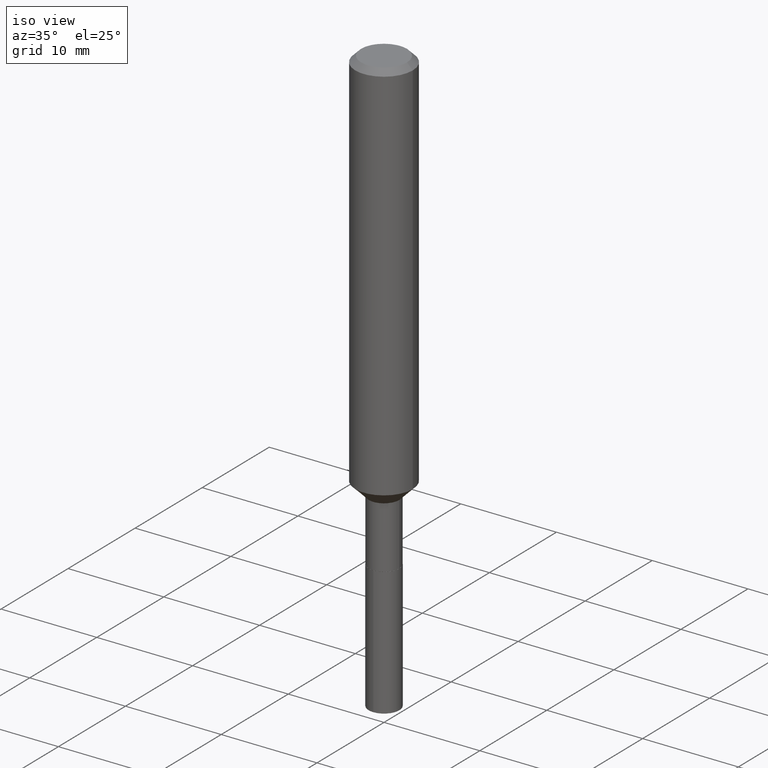
[diagram: clean part render]
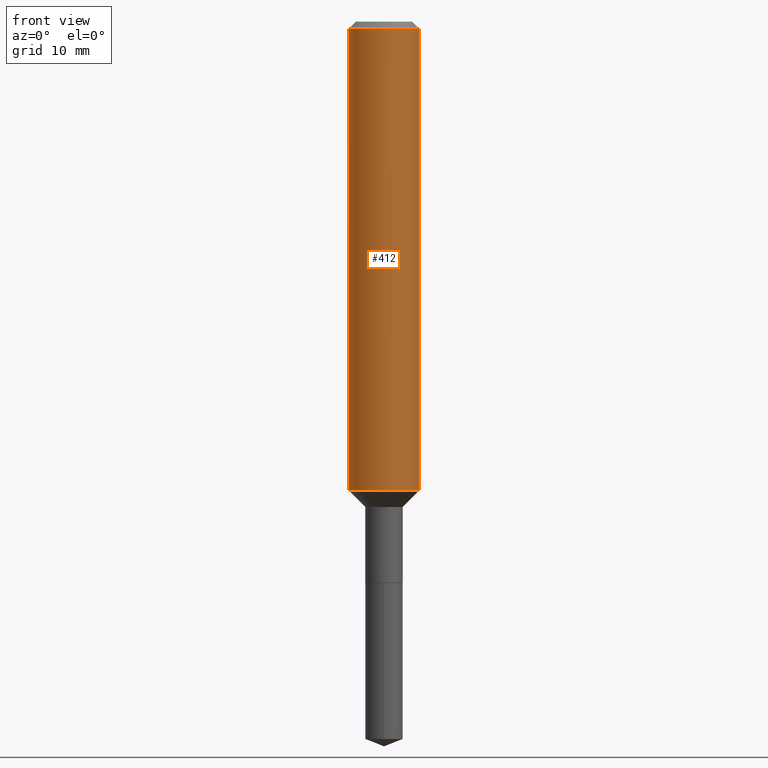
[diagram: tour spotlight — one face highlighted and labeled with its STEP entity id]
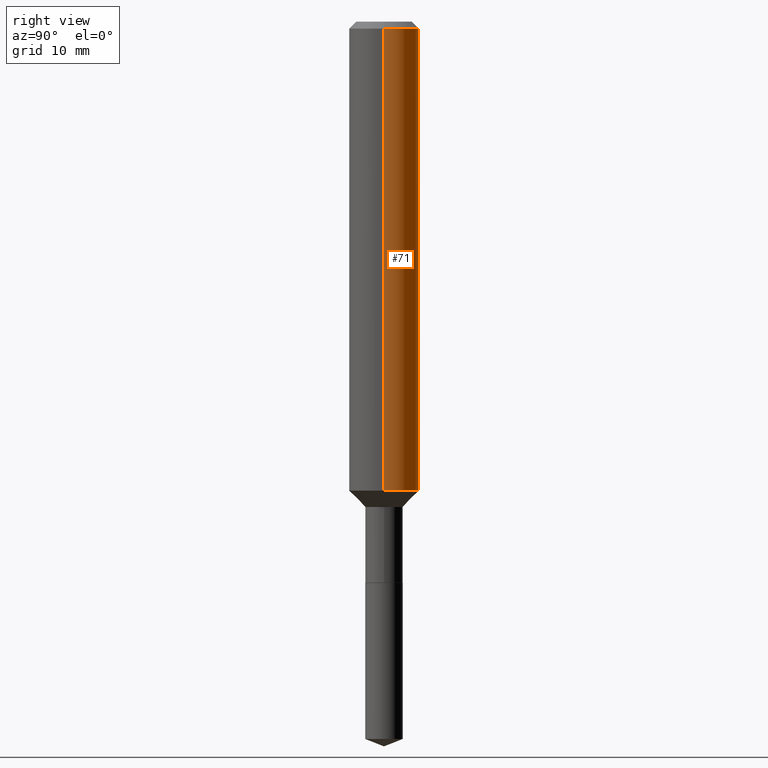
[diagram: tour spotlight — one face highlighted and labeled with its STEP entity id]
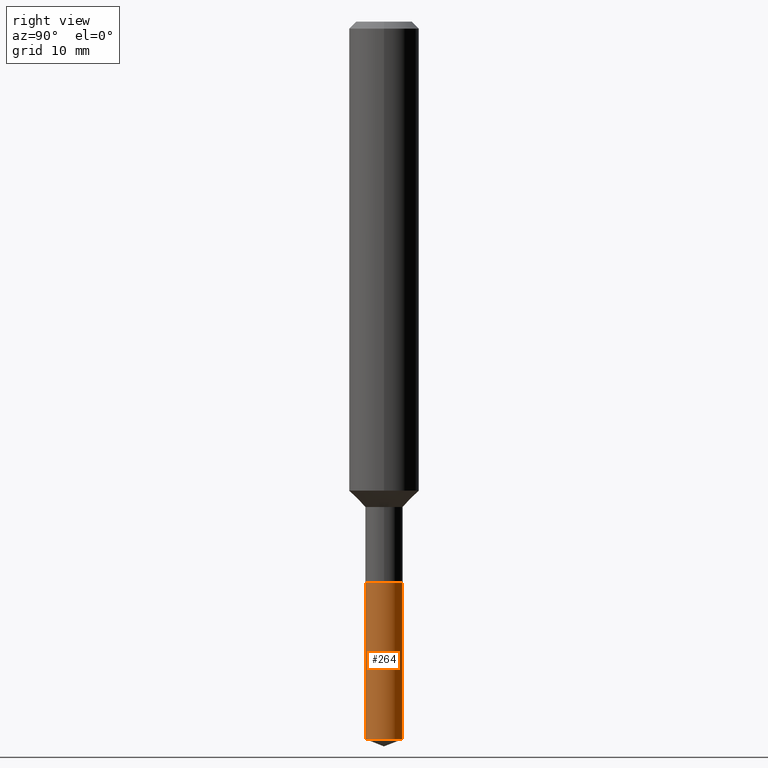
[diagram: tour spotlight — one face highlighted and labeled with its STEP entity id]
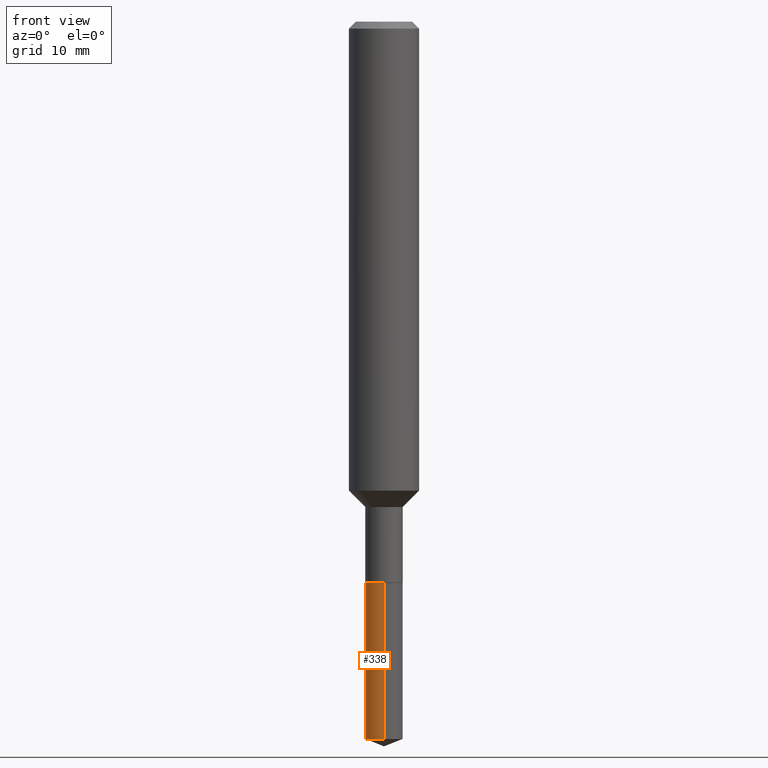
[diagram: tour spotlight — one face highlighted and labeled with its STEP entity id]
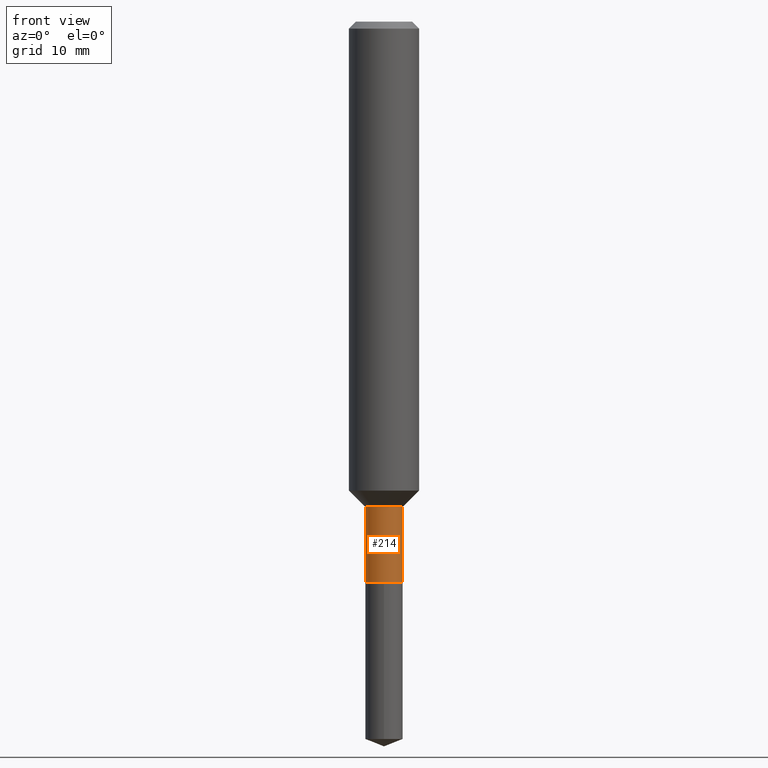
[diagram: tour spotlight — one face highlighted and labeled with its STEP entity id]
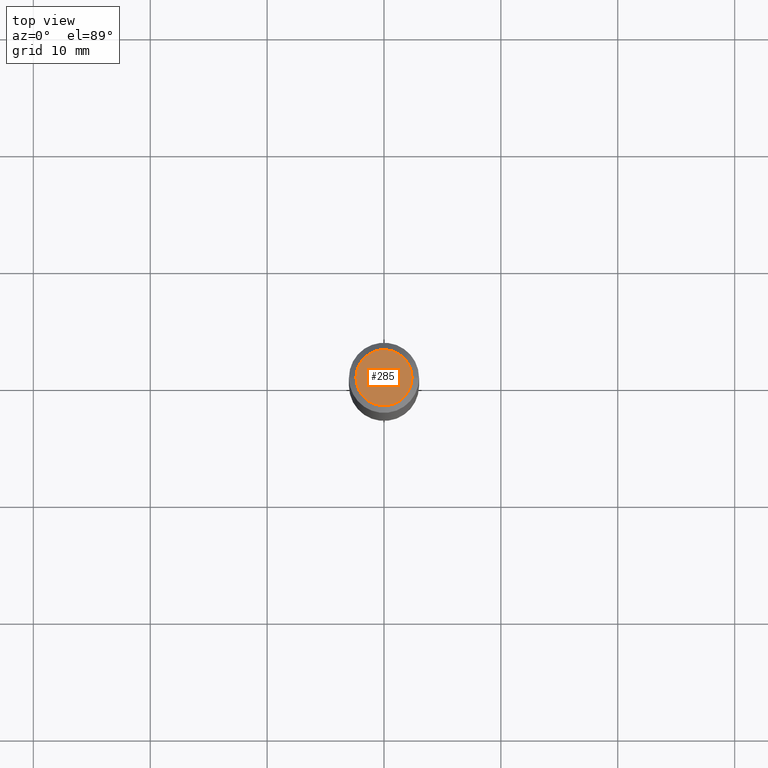
[diagram: tour spotlight — one face highlighted and labeled with its STEP entity id]
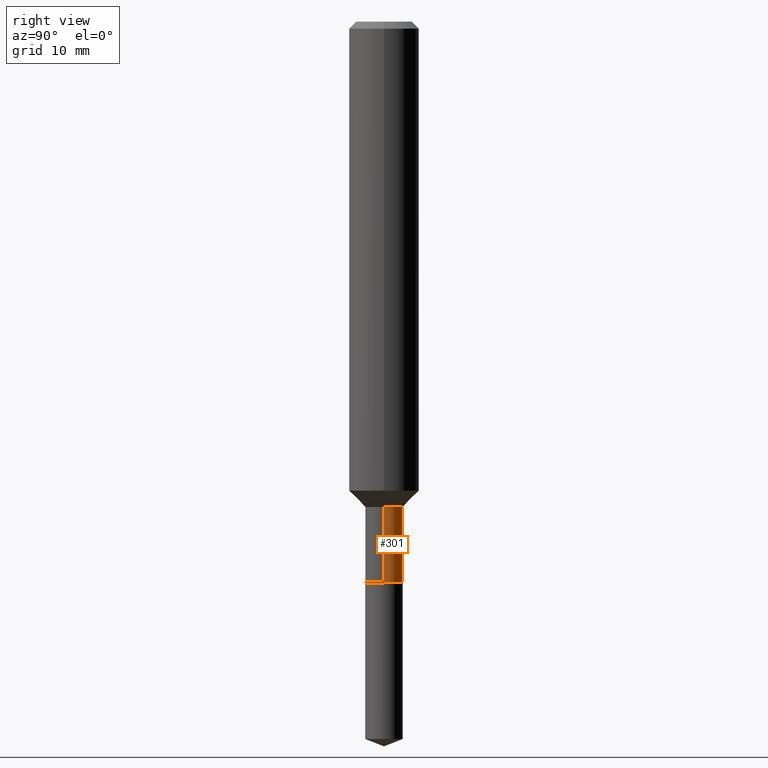
[diagram: tour spotlight — one face highlighted and labeled with its STEP entity id]
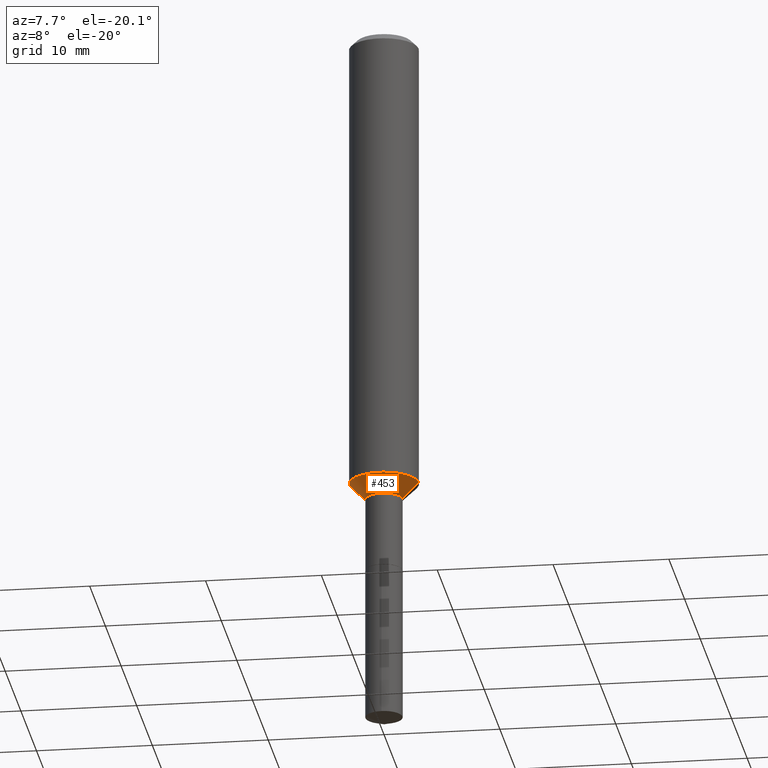
[diagram: tour spotlight — one face highlighted and labeled with its STEP entity id]
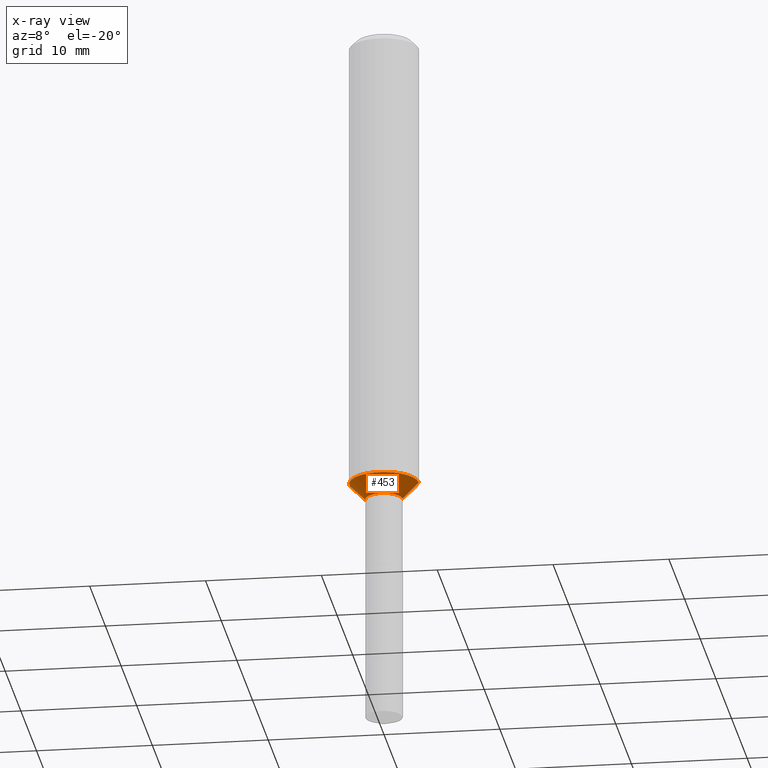
[diagram: x-ray of the same camera — body ghosted, this tour face saturated]
A machine part: a face-by-face anatomy tour. The part has 17 B-rep faces; the first image is the clean iso view, then the 8 largest visible faces are spotlighted one at a time (largest first), each with its STEP entity span.

Face 1 — front view, entity #412. In plain terms, the highlighted cylindrical surface (edge-blend (fillet) strip) has radius 2.9997 mm, axis along (-0, 0, 1).
Definition (entity closure, byte-faithful):
#31 = DIRECTION ( 'NONE',  ( -2.445468806185136597E-29, 3.491481338843145583E-15, 1.000000000000000000 ) ) ;
#32 = LINE ( 'NONE', #172, #233 ) ;
#40 = VERTEX_POINT ( 'NONE', #406 ) ;
#47 = VERTEX_POINT ( 'NONE', #262 ) ;
#66 = AXIS2_PLACEMENT_3D ( 'NONE', #263, #479, #106 ) ;
#81 = ORIENTED_EDGE ( 'NONE', *, *, #430, .F. ) ;
#90 = EDGE_CURVE ( 'NONE', #438, #40, #329, .T. ) ;
#103 = CARTESIAN_POINT ( 'NONE',  ( 3.862617979369423335E-29, -5.514794774702748288E-15, -1.579499999999999904 ) ) ;
#106 = DIRECTION ( 'NONE',  ( 1.000000000000000000, -6.982962677686266711E-15, 0.000000000000000000 ) ) ;
#138 = DIRECTION ( 'NONE',  ( -2.445468806185136597E-29, 3.491481338843145583E-15, 1.000000000000000000 ) ) ;
#143 = DIRECTION ( 'NONE',  ( -2.445468806185136877E-29, 3.491481338843145188E-15, 1.000000000000000000 ) ) ;
#144 = AXIS2_PLACEMENT_3D ( 'NONE', #224, #31, #174 ) ;
#153 = VECTOR ( 'NONE', #143, 39.37007874015748143 ) ;
#164 = FACE_OUTER_BOUND ( 'NONE', #232, .T. ) ;
#165 = EDGE_CURVE ( 'NONE', #294, #47, #32, .T. ) ;
#172 = CARTESIAN_POINT ( 'NONE',  ( 0.1181000000000001077, -8.246878922347488542E-16, 5.758764772215005345E-30 ) ) ;
#174 = DIRECTION ( 'NONE',  ( 1.000000000000000000, -6.982962677686266711E-15, 4.876176775795935793E-29 ) ) ;
#177 = CYLINDRICAL_SURFACE ( 'NONE', #144, 0.1181000000000001077 ) ;
#212 = CARTESIAN_POINT ( 'NONE',  ( 0.1181000000000001632, -6.339482666937496551E-15, -1.579499999999999904 ) ) ;
#224 = CARTESIAN_POINT ( 'NONE',  ( 0.000000000000000000, 0.000000000000000000, 0.000000000000000000 ) ) ;
#232 = EDGE_LOOP ( 'NONE', ( #298, #457, #411, #81 ) ) ;
#233 = VECTOR ( 'NONE', #439, 39.37007874015748143 ) ;
#261 = AXIS2_PLACEMENT_3D ( 'NONE', #103, #138, #286 ) ;
#262 = CARTESIAN_POINT ( 'NONE',  ( 0.1180999999999999966, -9.071566814582237199E-16, -0.02362000000000014088 ) ) ;
#263 = CARTESIAN_POINT ( 'NONE',  ( 5.776197320209327532E-31, -8.246878922347559293E-17, -0.02362000000000014088 ) ) ;
#286 = DIRECTION ( 'NONE',  ( 1.000000000000000000, -6.982962677686269077E-15, 0.000000000000000000 ) ) ;
#294 = VERTEX_POINT ( 'NONE', #212 ) ;
#298 = ORIENTED_EDGE ( 'NONE', *, *, #90, .F. ) ;
#329 = LINE ( 'NONE', #360, #153 ) ;
#360 = CARTESIAN_POINT ( 'NONE',  ( -0.1181000000000001077, 8.391509709326790846E-16, -5.809262341591049389E-30 ) ) ;
#406 = CARTESIAN_POINT ( 'NONE',  ( -0.1180999999999999966, -1.959480811030432098E-15, -0.02362000000000014088 ) ) ;
#409 = CIRCLE ( 'NONE', #66, 0.1180999999999999966 ) ;
#411 = ORIENTED_EDGE ( 'NONE', *, *, #165, .T. ) ;
#412 = ADVANCED_FACE ( 'NONE', ( #164 ), #177, .T. ) ;
#430 = EDGE_CURVE ( 'NONE', #40, #47, #409, .T. ) ;
#438 = VERTEX_POINT ( 'NONE', #482 ) ;
#439 = DIRECTION ( 'NONE',  ( -2.445468806185136877E-29, 3.491481338843145188E-15, 1.000000000000000000 ) ) ;
#457 = ORIENTED_EDGE ( 'NONE', *, *, #486, .T. ) ;
#479 = DIRECTION ( 'NONE',  ( -2.445468806185136597E-29, 3.491481338843145583E-15, 1.000000000000000000 ) ) ;
#482 = CARTESIAN_POINT ( 'NONE',  ( -0.1181000000000001632, -4.675643803770067725E-15, -1.579499999999999904 ) ) ;
#485 = CIRCLE ( 'NONE', #261, 0.1181000000000001909 ) ;
#486 = EDGE_CURVE ( 'NONE', #438, #294, #485, .T. ) ;

Face 2 — right view, entity #71. In plain terms, the highlighted cylindrical surface (edge-blend (fillet) strip) has radius 2.9997 mm, axis along (-0, 0, 1).
Definition (entity closure, byte-faithful):
#4 = AXIS2_PLACEMENT_3D ( 'NONE', #254, #480, #265 ) ;
#6 = ORIENTED_EDGE ( 'NONE', *, *, #255, .T. ) ;
#32 = LINE ( 'NONE', #172, #233 ) ;
#40 = VERTEX_POINT ( 'NONE', #406 ) ;
#47 = VERTEX_POINT ( 'NONE', #262 ) ;
#58 = ORIENTED_EDGE ( 'NONE', *, *, #203, .F. ) ;
#60 = DIRECTION ( 'NONE',  ( 1.000000000000000000, -6.982962677686266711E-15, 0.000000000000000000 ) ) ;
#71 = ADVANCED_FACE ( 'NONE', ( #221 ), #140, .T. ) ;
#90 = EDGE_CURVE ( 'NONE', #438, #40, #329, .T. ) ;
#95 = CARTESIAN_POINT ( 'NONE',  ( 5.776197320209327532E-31, -8.246878922347559293E-17, -0.02362000000000014088 ) ) ;
#135 = AXIS2_PLACEMENT_3D ( 'NONE', #410, #230, #378 ) ;
#140 = CYLINDRICAL_SURFACE ( 'NONE', #4, 0.1181000000000001077 ) ;
#143 = DIRECTION ( 'NONE',  ( -2.445468806185136877E-29, 3.491481338843145188E-15, 1.000000000000000000 ) ) ;
#153 = VECTOR ( 'NONE', #143, 39.37007874015748143 ) ;
#157 = EDGE_LOOP ( 'NONE', ( #6, #418, #58, #246 ) ) ;
#165 = EDGE_CURVE ( 'NONE', #294, #47, #32, .T. ) ;
#172 = CARTESIAN_POINT ( 'NONE',  ( 0.1181000000000001077, -8.246878922347488542E-16, 5.758764772215005345E-30 ) ) ;
#203 = EDGE_CURVE ( 'NONE', #47, #40, #484, .T. ) ;
#212 = CARTESIAN_POINT ( 'NONE',  ( 0.1181000000000001632, -6.339482666937496551E-15, -1.579499999999999904 ) ) ;
#221 = FACE_OUTER_BOUND ( 'NONE', #157, .T. ) ;
#230 = DIRECTION ( 'NONE',  ( -2.445468806185136597E-29, 3.491481338843145583E-15, 1.000000000000000000 ) ) ;
#233 = VECTOR ( 'NONE', #439, 39.37007874015748143 ) ;
#246 = ORIENTED_EDGE ( 'NONE', *, *, #165, .F. ) ;
#251 = DIRECTION ( 'NONE',  ( -2.445468806185136597E-29, 3.491481338843145583E-15, 1.000000000000000000 ) ) ;
#254 = CARTESIAN_POINT ( 'NONE',  ( 0.000000000000000000, 0.000000000000000000, 0.000000000000000000 ) ) ;
#255 = EDGE_CURVE ( 'NONE', #294, #438, #470, .T. ) ;
#262 = CARTESIAN_POINT ( 'NONE',  ( 0.1180999999999999966, -9.071566814582237199E-16, -0.02362000000000014088 ) ) ;
#265 = DIRECTION ( 'NONE',  ( 1.000000000000000000, -6.982962677686266711E-15, 4.876176775795935793E-29 ) ) ;
#294 = VERTEX_POINT ( 'NONE', #212 ) ;
#329 = LINE ( 'NONE', #360, #153 ) ;
#360 = CARTESIAN_POINT ( 'NONE',  ( -0.1181000000000001077, 8.391509709326790846E-16, -5.809262341591049389E-30 ) ) ;
#378 = DIRECTION ( 'NONE',  ( 1.000000000000000000, -6.982962677686269077E-15, 0.000000000000000000 ) ) ;
#402 = AXIS2_PLACEMENT_3D ( 'NONE', #95, #251, #60 ) ;
#406 = CARTESIAN_POINT ( 'NONE',  ( -0.1180999999999999966, -1.959480811030432098E-15, -0.02362000000000014088 ) ) ;
#410 = CARTESIAN_POINT ( 'NONE',  ( 3.862617979369423335E-29, -5.514794774702748288E-15, -1.579499999999999904 ) ) ;
#418 = ORIENTED_EDGE ( 'NONE', *, *, #90, .T. ) ;
#438 = VERTEX_POINT ( 'NONE', #482 ) ;
#439 = DIRECTION ( 'NONE',  ( -2.445468806185136877E-29, 3.491481338843145188E-15, 1.000000000000000000 ) ) ;
#470 = CIRCLE ( 'NONE', #135, 0.1181000000000001909 ) ;
#480 = DIRECTION ( 'NONE',  ( -2.445468806185136597E-29, 3.491481338843145583E-15, 1.000000000000000000 ) ) ;
#482 = CARTESIAN_POINT ( 'NONE',  ( -0.1181000000000001632, -4.675643803770067725E-15, -1.579499999999999904 ) ) ;
#484 = CIRCLE ( 'NONE', #402, 0.1180999999999999966 ) ;

Face 3 — right view, entity #264. In plain terms, the highlighted cylindrical surface (edge-blend (fillet) strip) has radius 1.6002 mm, axis along (-0, 0, 1).
Definition (entity closure, byte-faithful):
#11 = CARTESIAN_POINT ( 'NONE',  ( 4.476419235289221862E-16, 0.06299999999999340849, -1.889700000000000379 ) ) ;
#13 = EDGE_CURVE ( 'NONE', #209, #277, #267, .T. ) ;
#28 = LINE ( 'NONE', #399, #376 ) ;
#44 = DIRECTION ( 'NONE',  ( -6.982962677686265922E-15, -1.000000000000000000, 4.336266656609941617E-15 ) ) ;
#49 = AXIS2_PLACEMENT_3D ( 'NONE', #222, #191, #96 ) ;
#78 = CYLINDRICAL_SURFACE ( 'NONE', #258, 0.06300000000000000044 ) ;
#96 = DIRECTION ( 'NONE',  ( -6.982962677686265922E-15, -1.000000000000000000, 4.336266656609941617E-15 ) ) ;
#97 = ORIENTED_EDGE ( 'NONE', *, *, #112, .F. ) ;
#112 = EDGE_CURVE ( 'NONE', #269, #209, #28, .T. ) ;
#119 = DIRECTION ( 'NONE',  ( -2.434988852863249163E-29, 3.506489228481988303E-15, 1.000000000000000000 ) ) ;
#127 = ORIENTED_EDGE ( 'NONE', *, *, #444, .T. ) ;
#139 = CARTESIAN_POINT ( 'NONE',  ( 4.476419235289220876E-16, 0.06299999999999156275, -2.416083640036259084 ) ) ;
#180 = CARTESIAN_POINT ( 'NONE',  ( 5.902940698865924869E-29, -8.443610849848174055E-15, -2.416083640036259084 ) ) ;
#186 = DIRECTION ( 'NONE',  ( -2.434988852863248882E-29, 3.506489228481988303E-15, 1.000000000000000000 ) ) ;
#188 = EDGE_CURVE ( 'NONE', #423, #277, #227, .T. ) ;
#191 = DIRECTION ( 'NONE',  ( -2.434988852863249163E-29, 3.506489228481988303E-15, 1.000000000000000000 ) ) ;
#198 = ORIENTED_EDGE ( 'NONE', *, *, #188, .T. ) ;
#209 = VERTEX_POINT ( 'NONE', #284 ) ;
#211 = CIRCLE ( 'NONE', #241, 0.06300000000000001432 ) ;
#222 = CARTESIAN_POINT ( 'NONE',  ( 4.621202403048053204E-29, -6.597852286011892490E-15, -1.889700000000000157 ) ) ;
#227 = LINE ( 'NONE', #317, #408 ) ;
#241 = AXIS2_PLACEMENT_3D ( 'NONE', #180, #320, #405 ) ;
#258 = AXIS2_PLACEMENT_3D ( 'NONE', #303, #119, #44 ) ;
#264 = ADVANCED_FACE ( 'NONE', ( #373 ), #78, .T. ) ;
#267 = CIRCLE ( 'NONE', #49, 0.06300000000000000044 ) ;
#269 = VERTEX_POINT ( 'NONE', #467 ) ;
#277 = VERTEX_POINT ( 'NONE', #11 ) ;
#284 = CARTESIAN_POINT ( 'NONE',  ( -4.399266486941885775E-16, -0.06300000000000660627, -1.889699999999999713 ) ) ;
#293 = DIRECTION ( 'NONE',  ( -2.434988852863248882E-29, 3.506489228481988303E-15, 1.000000000000000000 ) ) ;
#303 = CARTESIAN_POINT ( 'NONE',  ( 4.621202403048053204E-29, -6.597852286011892490E-15, -1.889700000000000157 ) ) ;
#317 = CARTESIAN_POINT ( 'NONE',  ( 4.476419235289092686E-16, 0.06299999999999340849, -1.889700000000000379 ) ) ;
#320 = DIRECTION ( 'NONE',  ( -2.434988852863249163E-29, 3.506489228481988303E-15, 1.000000000000000000 ) ) ;
#336 = EDGE_LOOP ( 'NONE', ( #127, #198, #427, #97 ) ) ;
#373 = FACE_OUTER_BOUND ( 'NONE', #336, .T. ) ;
#376 = VECTOR ( 'NONE', #186, 39.37007874015748143 ) ;
#399 = CARTESIAN_POINT ( 'NONE',  ( -4.399266486941885775E-16, -0.06300000000000660627, -1.889699999999999713 ) ) ;
#405 = DIRECTION ( 'NONE',  ( -6.982962677686265133E-15, -1.000000000000000000, 4.336266656609940828E-15 ) ) ;
#408 = VECTOR ( 'NONE', #293, 39.37007874015748143 ) ;
#423 = VERTEX_POINT ( 'NONE', #139 ) ;
#427 = ORIENTED_EDGE ( 'NONE', *, *, #13, .F. ) ;
#444 = EDGE_CURVE ( 'NONE', #269, #423, #211, .T. ) ;
#467 = CARTESIAN_POINT ( 'NONE',  ( -4.399266486941757092E-16, -0.06300000000000843814, -2.416083640036258640 ) ) ;

Face 4 — front view, entity #338. In plain terms, the highlighted cylindrical surface (edge-blend (fillet) strip) has radius 1.6002 mm, axis along (-0, 0, 1).
Definition (entity closure, byte-faithful):
#11 = CARTESIAN_POINT ( 'NONE',  ( 4.476419235289221862E-16, 0.06299999999999340849, -1.889700000000000379 ) ) ;
#15 = DIRECTION ( 'NONE',  ( -6.982962677686265922E-15, -1.000000000000000000, 4.336266656609941617E-15 ) ) ;
#19 = EDGE_LOOP ( 'NONE', ( #67, #155, #79, #371 ) ) ;
#28 = LINE ( 'NONE', #399, #376 ) ;
#59 = DIRECTION ( 'NONE',  ( -2.434988852863249163E-29, 3.506489228481988303E-15, 1.000000000000000000 ) ) ;
#67 = ORIENTED_EDGE ( 'NONE', *, *, #188, .F. ) ;
#79 = ORIENTED_EDGE ( 'NONE', *, *, #112, .T. ) ;
#80 = AXIS2_PLACEMENT_3D ( 'NONE', #245, #59, #91 ) ;
#91 = DIRECTION ( 'NONE',  ( -6.982962677686265922E-15, -1.000000000000000000, 4.336266656609941617E-15 ) ) ;
#112 = EDGE_CURVE ( 'NONE', #269, #209, #28, .T. ) ;
#139 = CARTESIAN_POINT ( 'NONE',  ( 4.476419235289220876E-16, 0.06299999999999156275, -2.416083640036259084 ) ) ;
#155 = ORIENTED_EDGE ( 'NONE', *, *, #331, .T. ) ;
#163 = CYLINDRICAL_SURFACE ( 'NONE', #356, 0.06300000000000000044 ) ;
#186 = DIRECTION ( 'NONE',  ( -2.434988852863248882E-29, 3.506489228481988303E-15, 1.000000000000000000 ) ) ;
#188 = EDGE_CURVE ( 'NONE', #423, #277, #227, .T. ) ;
#200 = CARTESIAN_POINT ( 'NONE',  ( 5.902940698865924869E-29, -8.443610849848174055E-15, -2.416083640036259084 ) ) ;
#201 = AXIS2_PLACEMENT_3D ( 'NONE', #200, #385, #346 ) ;
#209 = VERTEX_POINT ( 'NONE', #284 ) ;
#227 = LINE ( 'NONE', #317, #408 ) ;
#245 = CARTESIAN_POINT ( 'NONE',  ( 4.621202403048053204E-29, -6.597852286011892490E-15, -1.889700000000000157 ) ) ;
#247 = CARTESIAN_POINT ( 'NONE',  ( 4.621202403048053204E-29, -6.597852286011892490E-15, -1.889700000000000157 ) ) ;
#269 = VERTEX_POINT ( 'NONE', #467 ) ;
#277 = VERTEX_POINT ( 'NONE', #11 ) ;
#279 = EDGE_CURVE ( 'NONE', #277, #209, #365, .T. ) ;
#284 = CARTESIAN_POINT ( 'NONE',  ( -4.399266486941885775E-16, -0.06300000000000660627, -1.889699999999999713 ) ) ;
#293 = DIRECTION ( 'NONE',  ( -2.434988852863248882E-29, 3.506489228481988303E-15, 1.000000000000000000 ) ) ;
#305 = DIRECTION ( 'NONE',  ( -2.434988852863249163E-29, 3.506489228481988303E-15, 1.000000000000000000 ) ) ;
#317 = CARTESIAN_POINT ( 'NONE',  ( 4.476419235289092686E-16, 0.06299999999999340849, -1.889700000000000379 ) ) ;
#331 = EDGE_CURVE ( 'NONE', #423, #269, #341, .T. ) ;
#338 = ADVANCED_FACE ( 'NONE', ( #471 ), #163, .T. ) ;
#341 = CIRCLE ( 'NONE', #201, 0.06300000000000001432 ) ;
#346 = DIRECTION ( 'NONE',  ( -6.982962677686265133E-15, -1.000000000000000000, 4.336266656609940828E-15 ) ) ;
#356 = AXIS2_PLACEMENT_3D ( 'NONE', #247, #305, #15 ) ;
#365 = CIRCLE ( 'NONE', #80, 0.06300000000000000044 ) ;
#371 = ORIENTED_EDGE ( 'NONE', *, *, #279, .F. ) ;
#376 = VECTOR ( 'NONE', #186, 39.37007874015748143 ) ;
#385 = DIRECTION ( 'NONE',  ( -2.434988852863249163E-29, 3.506489228481988303E-15, 1.000000000000000000 ) ) ;
#399 = CARTESIAN_POINT ( 'NONE',  ( -4.399266486941885775E-16, -0.06300000000000660627, -1.889699999999999713 ) ) ;
#408 = VECTOR ( 'NONE', #293, 39.37007874015748143 ) ;
#423 = VERTEX_POINT ( 'NONE', #139 ) ;
#467 = CARTESIAN_POINT ( 'NONE',  ( -4.399266486941757092E-16, -0.06300000000000843814, -2.416083640036258640 ) ) ;
#471 = FACE_OUTER_BOUND ( 'NONE', #19, .T. ) ;

Face 5 — front view, entity #214. In plain terms, the highlighted cylindrical surface (edge-blend (fillet) strip) has radius 1.6002 mm, axis along (-0, 0, 1).
Definition (entity closure, byte-faithful):
#35 = AXIS2_PLACEMENT_3D ( 'NONE', #451, #300, #380 ) ;
#41 = ORIENTED_EDGE ( 'NONE', *, *, #362, .F. ) ;
#51 = VECTOR ( 'NONE', #204, 39.37007874015748143 ) ;
#75 = VERTEX_POINT ( 'NONE', #226 ) ;
#84 = ORIENTED_EDGE ( 'NONE', *, *, #481, .T. ) ;
#102 = EDGE_LOOP ( 'NONE', ( #41, #213, #84, #113 ) ) ;
#113 = ORIENTED_EDGE ( 'NONE', *, *, #121, .F. ) ;
#121 = EDGE_CURVE ( 'NONE', #374, #466, #442, .T. ) ;
#129 = CIRCLE ( 'NONE', #307, 0.06299999999999998657 ) ;
#134 = VERTEX_POINT ( 'NONE', #287 ) ;
#141 = DIRECTION ( 'NONE',  ( -2.445468806185136877E-29, 3.491481338843145188E-15, 1.000000000000000000 ) ) ;
#158 = EDGE_CURVE ( 'NONE', #75, #134, #129, .T. ) ;
#190 = CYLINDRICAL_SURFACE ( 'NONE', #35, 0.06299999999999998657 ) ;
#204 = DIRECTION ( 'NONE',  ( -2.445468806185136877E-29, 3.491481338843145188E-15, 1.000000000000000000 ) ) ;
#213 = ORIENTED_EDGE ( 'NONE', *, *, #158, .T. ) ;
#214 = ADVANCED_FACE ( 'NONE', ( #268 ), #190, .T. ) ;
#215 = LINE ( 'NONE', #253, #249 ) ;
#226 = CARTESIAN_POINT ( 'NONE',  ( -0.06300000000000000044, -5.703999047378875308E-15, -1.889200000000000212 ) ) ;
#249 = VECTOR ( 'NONE', #141, 39.37007874015748143 ) ;
#253 = CARTESIAN_POINT ( 'NONE',  ( 0.06299999999999998657, -4.399266486942346765E-16, 3.071991368751438723E-30 ) ) ;
#268 = FACE_OUTER_BOUND ( 'NONE', #102, .T. ) ;
#287 = CARTESIAN_POINT ( 'NONE',  ( 0.06299999999999998657, -7.036033194036706451E-15, -1.889200000000000212 ) ) ;
#300 = DIRECTION ( 'NONE',  ( -2.445468806185136597E-29, 3.491481338843145583E-15, 1.000000000000000000 ) ) ;
#307 = AXIS2_PLACEMENT_3D ( 'NONE', #364, #361, #477 ) ;
#319 = AXIS2_PLACEMENT_3D ( 'NONE', #321, #396, #435 ) ;
#321 = CARTESIAN_POINT ( 'NONE',  ( 3.997363310590224498E-29, -5.707175396473005870E-15, -1.634600000000000053 ) ) ;
#340 = CARTESIAN_POINT ( 'NONE',  ( -0.06299999999999997269, -5.703999047378875308E-15, -1.634600000000000053 ) ) ;
#361 = DIRECTION ( 'NONE',  ( -2.445468806185136597E-29, 3.491481338843145583E-15, 1.000000000000000000 ) ) ;
#362 = EDGE_CURVE ( 'NONE', #75, #374, #429, .T. ) ;
#364 = CARTESIAN_POINT ( 'NONE',  ( 4.619979668644960403E-29, -6.596106545342470986E-15, -1.889200000000000212 ) ) ;
#374 = VERTEX_POINT ( 'NONE', #340 ) ;
#380 = DIRECTION ( 'NONE',  ( 1.000000000000000000, -6.982962677686265922E-15, 4.876176775795935793E-29 ) ) ;
#396 = DIRECTION ( 'NONE',  ( -2.445468806185136597E-29, 3.491481338843145583E-15, 1.000000000000000000 ) ) ;
#403 = CARTESIAN_POINT ( 'NONE',  ( 0.06299999999999997269, -6.147102045167239758E-15, -1.634600000000000053 ) ) ;
#429 = LINE ( 'NONE', #469, #51 ) ;
#435 = DIRECTION ( 'NONE',  ( 1.000000000000000000, -6.982962677686258822E-15, 0.000000000000000000 ) ) ;
#442 = CIRCLE ( 'NONE', #319, 0.06299999999999997269 ) ;
#451 = CARTESIAN_POINT ( 'NONE',  ( 0.000000000000000000, 0.000000000000000000, 0.000000000000000000 ) ) ;
#466 = VERTEX_POINT ( 'NONE', #403 ) ;
#469 = CARTESIAN_POINT ( 'NONE',  ( -0.06299999999999998657, 4.476419235288630216E-16, -3.098929106860589953E-30 ) ) ;
#477 = DIRECTION ( 'NONE',  ( 1.000000000000000000, -6.982962677686272233E-15, 0.000000000000000000 ) ) ;
#481 = EDGE_CURVE ( 'NONE', #134, #466, #215, .T. ) ;

Face 6 — top view, entity #285. In plain terms, the highlighted planar face has unit normal (0, -0, -1).
Definition (entity closure, byte-faithful):
#23 = CARTESIAN_POINT ( 'NONE',  ( 4.716267017698007905E-46, -6.733579360998555036E-32, -1.928573779297252010E-17 ) ) ;
#30 = DIRECTION ( 'NONE',  ( 1.000000000000000000, -6.982962677686267499E-15, 4.875432709231658792E-29 ) ) ;
#93 = CIRCLE ( 'NONE', #434, 0.09447999999999998066 ) ;
#123 = ORIENTED_EDGE ( 'NONE', *, *, #179, .T. ) ;
#130 = DIRECTION ( 'NONE',  ( 2.438088387897960049E-29, -3.491481338843145188E-15, -1.000000000000000000 ) ) ;
#142 = AXIS2_PLACEMENT_3D ( 'NONE', #161, #130, #312 ) ;
#150 = VERTEX_POINT ( 'NONE', #355 ) ;
#161 = CARTESIAN_POINT ( 'NONE',  ( 2.358133508849003952E-46, -3.366789680499277518E-32, -9.642868896486260050E-18 ) ) ;
#179 = EDGE_CURVE ( 'NONE', #150, #459, #314, .T. ) ;
#196 = ORIENTED_EDGE ( 'NONE', *, *, #324, .T. ) ;
#207 = CARTESIAN_POINT ( 'NONE',  ( 4.716267017698007905E-46, -6.733579360998555036E-32, -1.928573779297252010E-17 ) ) ;
#239 = DIRECTION ( 'NONE',  ( 1.000000000000000000, -6.982962677686267499E-15, 4.875432709231658792E-29 ) ) ;
#256 = DIRECTION ( 'NONE',  ( -2.445468806185136597E-29, 3.491481338843145583E-15, 1.000000000000000000 ) ) ;
#283 = AXIS2_PLACEMENT_3D ( 'NONE', #23, #256, #30 ) ;
#285 = ADVANCED_FACE ( 'NONE', ( #349 ), #426, .F. ) ;
#312 = DIRECTION ( 'NONE',  ( -1.000000000000000000, 6.982962677686265922E-15, -4.876176775795935793E-29 ) ) ;
#314 = CIRCLE ( 'NONE', #283, 0.09447999999999998066 ) ;
#324 = EDGE_CURVE ( 'NONE', #459, #150, #93, .T. ) ;
#344 = DIRECTION ( 'NONE',  ( -2.445468806185136597E-29, 3.491481338843145583E-15, 1.000000000000000000 ) ) ;
#349 = FACE_OUTER_BOUND ( 'NONE', #353, .T. ) ;
#353 = EDGE_LOOP ( 'NONE', ( #123, #196 ) ) ;
#355 = CARTESIAN_POINT ( 'NONE',  ( -0.09447999999999998066, 7.009847083995354710E-16, -1.928573779297727792E-17 ) ) ;
#400 = CARTESIAN_POINT ( 'NONE',  ( 0.09447999999999998066, -7.704367267948738690E-16, -1.928573779296752193E-17 ) ) ;
#426 = PLANE ( 'NONE',  #142 ) ;
#434 = AXIS2_PLACEMENT_3D ( 'NONE', #207, #344, #239 ) ;
#459 = VERTEX_POINT ( 'NONE', #400 ) ;

Face 7 — right view, entity #301. In plain terms, the highlighted cylindrical surface (edge-blend (fillet) strip) has radius 1.6002 mm, axis along (-0, 0, 1).
Definition (entity closure, byte-faithful):
#10 = AXIS2_PLACEMENT_3D ( 'NONE', #290, #63, #441 ) ;
#20 = EDGE_CURVE ( 'NONE', #466, #374, #425, .T. ) ;
#24 = ORIENTED_EDGE ( 'NONE', *, *, #481, .F. ) ;
#51 = VECTOR ( 'NONE', #204, 39.37007874015748143 ) ;
#63 = DIRECTION ( 'NONE',  ( -2.445468806185136597E-29, 3.491481338843145583E-15, 1.000000000000000000 ) ) ;
#75 = VERTEX_POINT ( 'NONE', #226 ) ;
#110 = AXIS2_PLACEMENT_3D ( 'NONE', #401, #219, #216 ) ;
#115 = EDGE_LOOP ( 'NONE', ( #235, #311, #168, #24 ) ) ;
#128 = EDGE_CURVE ( 'NONE', #134, #75, #306, .T. ) ;
#133 = CYLINDRICAL_SURFACE ( 'NONE', #210, 0.06299999999999998657 ) ;
#134 = VERTEX_POINT ( 'NONE', #287 ) ;
#141 = DIRECTION ( 'NONE',  ( -2.445468806185136877E-29, 3.491481338843145188E-15, 1.000000000000000000 ) ) ;
#168 = ORIENTED_EDGE ( 'NONE', *, *, #20, .F. ) ;
#204 = DIRECTION ( 'NONE',  ( -2.445468806185136877E-29, 3.491481338843145188E-15, 1.000000000000000000 ) ) ;
#210 = AXIS2_PLACEMENT_3D ( 'NONE', #343, #275, #243 ) ;
#215 = LINE ( 'NONE', #253, #249 ) ;
#216 = DIRECTION ( 'NONE',  ( 1.000000000000000000, -6.982962677686258822E-15, 0.000000000000000000 ) ) ;
#219 = DIRECTION ( 'NONE',  ( -2.445468806185136597E-29, 3.491481338843145583E-15, 1.000000000000000000 ) ) ;
#226 = CARTESIAN_POINT ( 'NONE',  ( -0.06300000000000000044, -5.703999047378875308E-15, -1.889200000000000212 ) ) ;
#235 = ORIENTED_EDGE ( 'NONE', *, *, #128, .T. ) ;
#236 = FACE_OUTER_BOUND ( 'NONE', #115, .T. ) ;
#243 = DIRECTION ( 'NONE',  ( 1.000000000000000000, -6.982962677686265922E-15, 4.876176775795935793E-29 ) ) ;
#249 = VECTOR ( 'NONE', #141, 39.37007874015748143 ) ;
#253 = CARTESIAN_POINT ( 'NONE',  ( 0.06299999999999998657, -4.399266486942346765E-16, 3.071991368751438723E-30 ) ) ;
#275 = DIRECTION ( 'NONE',  ( -2.445468806185136597E-29, 3.491481338843145583E-15, 1.000000000000000000 ) ) ;
#287 = CARTESIAN_POINT ( 'NONE',  ( 0.06299999999999998657, -7.036033194036706451E-15, -1.889200000000000212 ) ) ;
#290 = CARTESIAN_POINT ( 'NONE',  ( 4.619979668644960403E-29, -6.596106545342470986E-15, -1.889200000000000212 ) ) ;
#301 = ADVANCED_FACE ( 'NONE', ( #236 ), #133, .T. ) ;
#306 = CIRCLE ( 'NONE', #10, 0.06299999999999998657 ) ;
#311 = ORIENTED_EDGE ( 'NONE', *, *, #362, .T. ) ;
#340 = CARTESIAN_POINT ( 'NONE',  ( -0.06299999999999997269, -5.703999047378875308E-15, -1.634600000000000053 ) ) ;
#343 = CARTESIAN_POINT ( 'NONE',  ( 0.000000000000000000, 0.000000000000000000, 0.000000000000000000 ) ) ;
#362 = EDGE_CURVE ( 'NONE', #75, #374, #429, .T. ) ;
#374 = VERTEX_POINT ( 'NONE', #340 ) ;
#401 = CARTESIAN_POINT ( 'NONE',  ( 3.997363310590224498E-29, -5.707175396473005870E-15, -1.634600000000000053 ) ) ;
#403 = CARTESIAN_POINT ( 'NONE',  ( 0.06299999999999997269, -6.147102045167239758E-15, -1.634600000000000053 ) ) ;
#425 = CIRCLE ( 'NONE', #110, 0.06299999999999997269 ) ;
#429 = LINE ( 'NONE', #469, #51 ) ;
#441 = DIRECTION ( 'NONE',  ( 1.000000000000000000, -6.982962677686272233E-15, 0.000000000000000000 ) ) ;
#466 = VERTEX_POINT ( 'NONE', #403 ) ;
#469 = CARTESIAN_POINT ( 'NONE',  ( -0.06299999999999998657, 4.476419235288630216E-16, -3.098929106860589953E-30 ) ) ;
#481 = EDGE_CURVE ( 'NONE', #134, #466, #215, .T. ) ;

Face 8 — auxiliary view, entity #453. An x-ray twin of the same camera follows (body ghosted, this face saturated) — the face is partly hidden behind the body. In plain terms, the highlighted conical surface has half-angle 45 deg.
Definition (entity closure, byte-faithful):
#36 = VECTOR ( 'NONE', #388, 39.37007874015748143 ) ;
#56 = LINE ( 'NONE', #463, #36 ) ;
#103 = CARTESIAN_POINT ( 'NONE',  ( 3.862617979369423335E-29, -5.514794774702748288E-15, -1.579499999999999904 ) ) ;
#121 = EDGE_CURVE ( 'NONE', #374, #466, #442, .T. ) ;
#125 = ORIENTED_EDGE ( 'NONE', *, *, #309, .T. ) ;
#138 = DIRECTION ( 'NONE',  ( -2.445468806185136597E-29, 3.491481338843145583E-15, 1.000000000000000000 ) ) ;
#170 = FACE_OUTER_BOUND ( 'NONE', #342, .T. ) ;
#212 = CARTESIAN_POINT ( 'NONE',  ( 0.1181000000000001632, -6.339482666937496551E-15, -1.579499999999999904 ) ) ;
#250 = DIRECTION ( 'NONE',  ( -2.445468806185136597E-29, 3.491481338843145583E-15, 1.000000000000000000 ) ) ;
#259 = ORIENTED_EDGE ( 'NONE', *, *, #416, .F. ) ;
#261 = AXIS2_PLACEMENT_3D ( 'NONE', #103, #138, #286 ) ;
#286 = DIRECTION ( 'NONE',  ( 1.000000000000000000, -6.982962677686269077E-15, 0.000000000000000000 ) ) ;
#294 = VERTEX_POINT ( 'NONE', #212 ) ;
#297 = VECTOR ( 'NONE', #322, 39.37007874015748143 ) ;
#309 = EDGE_CURVE ( 'NONE', #466, #294, #56, .T. ) ;
#319 = AXIS2_PLACEMENT_3D ( 'NONE', #321, #396, #435 ) ;
#321 = CARTESIAN_POINT ( 'NONE',  ( 3.997363310590224498E-29, -5.707175396473005870E-15, -1.634600000000000053 ) ) ;
#322 = DIRECTION ( 'NONE',  ( -0.7071067811865476838, 7.493145998870354160E-15, 0.7071067811865473507 ) ) ;
#328 = CONICAL_SURFACE ( 'NONE', #394, 0.06299999999999997269, 0.7853981633974485010 ) ;
#339 = ORIENTED_EDGE ( 'NONE', *, *, #121, .T. ) ;
#340 = CARTESIAN_POINT ( 'NONE',  ( -0.06299999999999997269, -5.703999047378875308E-15, -1.634600000000000053 ) ) ;
#342 = EDGE_LOOP ( 'NONE', ( #259, #339, #125, #478 ) ) ;
#354 = LINE ( 'NONE', #440, #297 ) ;
#358 = CARTESIAN_POINT ( 'NONE',  ( 3.997363310590224498E-29, -5.707175396473005870E-15, -1.634600000000000053 ) ) ;
#374 = VERTEX_POINT ( 'NONE', #340 ) ;
#388 = DIRECTION ( 'NONE',  ( 0.7071067811865476838, -2.468850131082258638E-15, 0.7071067811865473507 ) ) ;
#394 = AXIS2_PLACEMENT_3D ( 'NONE', #358, #250, #476 ) ;
#396 = DIRECTION ( 'NONE',  ( -2.445468806185136597E-29, 3.491481338843145583E-15, 1.000000000000000000 ) ) ;
#403 = CARTESIAN_POINT ( 'NONE',  ( 0.06299999999999997269, -6.147102045167239758E-15, -1.634600000000000053 ) ) ;
#416 = EDGE_CURVE ( 'NONE', #374, #438, #354, .T. ) ;
#435 = DIRECTION ( 'NONE',  ( 1.000000000000000000, -6.982962677686258822E-15, 0.000000000000000000 ) ) ;
#438 = VERTEX_POINT ( 'NONE', #482 ) ;
#440 = CARTESIAN_POINT ( 'NONE',  ( -0.06299999999999997269, -5.259533472944143144E-15, -1.634600000000000053 ) ) ;
#442 = CIRCLE ( 'NONE', #319, 0.06299999999999997269 ) ;
#453 = ADVANCED_FACE ( 'NONE', ( #170 ), #328, .T. ) ;
#463 = CARTESIAN_POINT ( 'NONE',  ( 0.06299999999999997269, -6.147102045167239758E-15, -1.634600000000000053 ) ) ;
#466 = VERTEX_POINT ( 'NONE', #403 ) ;
#476 = DIRECTION ( 'NONE',  ( 1.000000000000000000, -6.982962677686258822E-15, 0.000000000000000000 ) ) ;
#478 = ORIENTED_EDGE ( 'NONE', *, *, #486, .F. ) ;
#482 = CARTESIAN_POINT ( 'NONE',  ( -0.1181000000000001632, -4.675643803770067725E-15, -1.579499999999999904 ) ) ;
#485 = CIRCLE ( 'NONE', #261, 0.1181000000000001909 ) ;
#486 = EDGE_CURVE ( 'NONE', #438, #294, #485, .T. ) ;